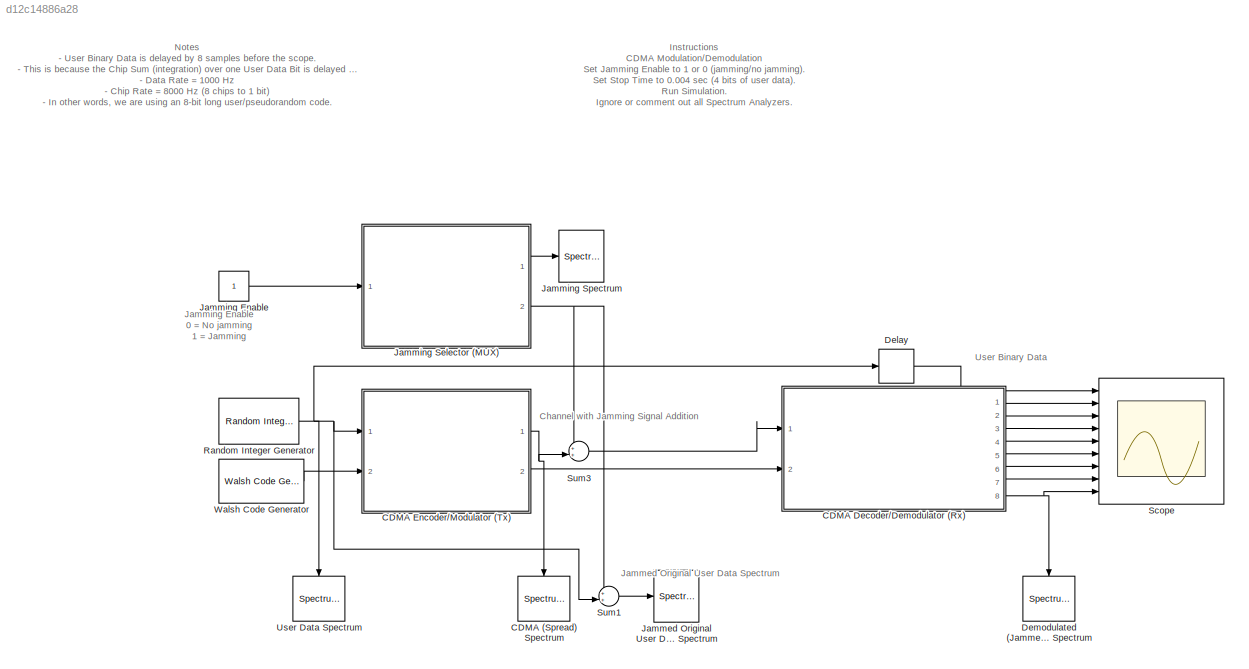
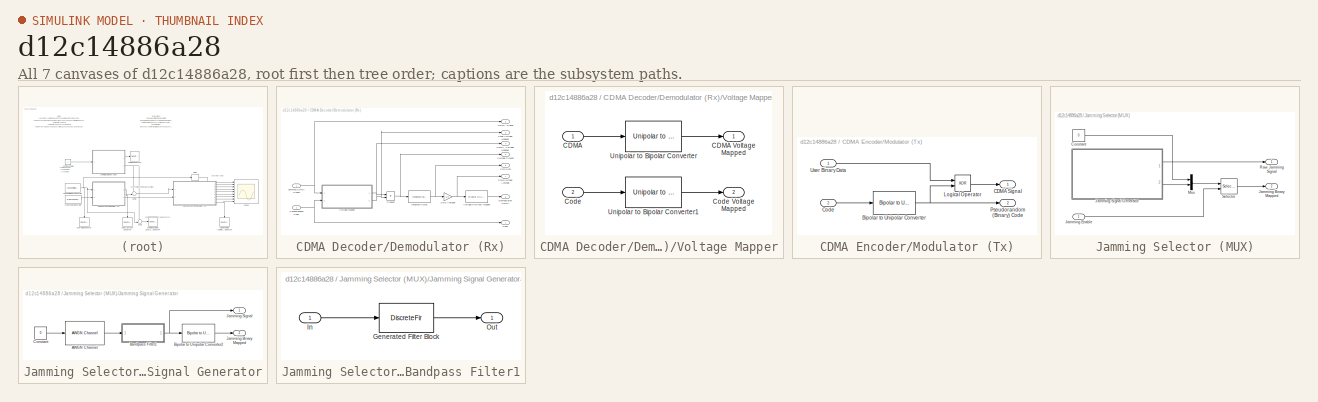
[diagram: thumbnail index - all 7 canvases of the model, root first then tree order]
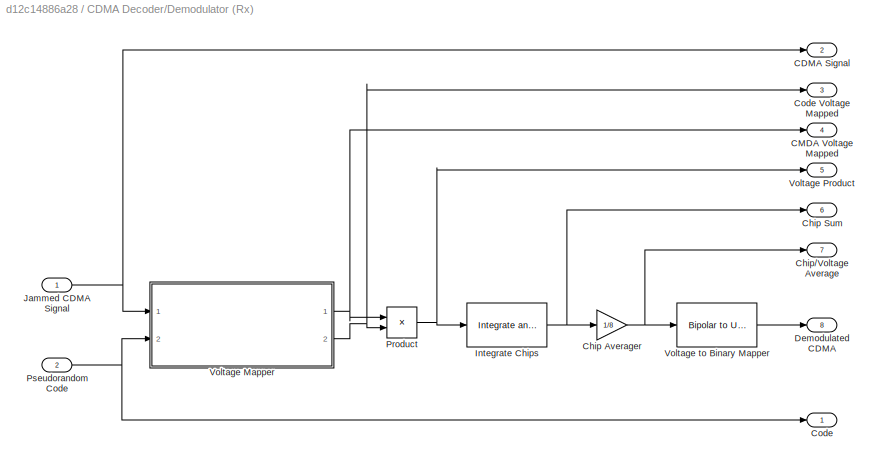
MODEL slx_d12c14886a28
KIND model
CONFIG AbsTol = auto
CONFIG EnableMultiTasking = off
CONFIG FixedStep = auto
CONFIG MaxStep = auto
CONFIG MinStep = auto
CONFIG RelTol = 1e-3
CONFIG SampleTimeConstraint = Unconstrained
CONFIG SolverName = VariableStepAuto
CONFIG StartTime = 0.0
CONFIG StopTime = 0.004
BLOCK [SpectrumAnalyzer] CDMA (Spread) Spectrum
  Commented = on
  NameLocation = left
  Ports = [1]
  ScopeSpecificationString = spbscopes.SpectrumAnalyzerBlockCfg('CurrentConfiguration', extmgr.ConfigurationSet(extmgr.Configuration('Core','General UI',true,'FigureColor',[0.8 0.8 0.8]),extmgr.Configuration('Core','Source UI',true),extmgr.Configuration('Sources','WiredSimulink',true),extmgr.Configuration('Visuals','Spectrum',true,'AxesProperties',struct('Color',{[0.941176470588235 0.941176470588235 0.941176470588235],[0.9411...<+2717ch>
BLOCK [SubSystem] CDMA Decoder//Demodulator (Rx)
  Ports = [2, 8]
  RequestExecContextInheritance = off
BLOCK [Outport] CDMA Decoder//Demodulator (Rx)/CDMA Signal
  Port = 2
BLOCK [Outport] CDMA Decoder//Demodulator (Rx)/CMDA Voltage Mapped
  Port = 4
BLOCK [Gain] CDMA Decoder//Demodulator (Rx)/Chip Averager
  Gain = 1/8
BLOCK [Outport] CDMA Decoder//Demodulator (Rx)/Chip Sum
  Port = 6
BLOCK [Outport] CDMA Decoder//Demodulator (Rx)/Chip//Voltage Average
  Port = 7
BLOCK [Outport] CDMA Decoder//Demodulator (Rx)/Code
BLOCK [Outport] CDMA Decoder//Demodulator (Rx)/Code Voltage Mapped
  Port = 3
BLOCK [Outport] CDMA Decoder//Demodulator (Rx)/Demodulated CDMA
  Port = 8
BLOCK [Reference] CDMA Decoder//Demodulator (Rx)/Integrate Chips  REF=commfilt2/Integrate
and Dump
  Ports = [1, 1]
  SourceBlock = commfilt2/Integrate\nand Dump
  SourceProductBaseCode = CM
  SourceType = Integrate and Dump
BLOCK [Inport] CDMA Decoder//Demodulator (Rx)/Jammed CDMA Signal
BLOCK [Product] CDMA Decoder//Demodulator (Rx)/Product
  Ports = [2, 1]
BLOCK [Inport] CDMA Decoder//Demodulator (Rx)/Pseudorandom Code
  Port = 2
BLOCK [SubSystem] CDMA Decoder//Demodulator (Rx)/Voltage Mapper
  Ports = [2, 2]
  RequestExecContextInheritance = off
BLOCK [Inport] CDMA Decoder//Demodulator (Rx)/Voltage Mapper/CDMA
BLOCK [Outport] CDMA Decoder//Demodulator (Rx)/Voltage Mapper/CDMA Voltage Mapped
BLOCK [Inport] CDMA Decoder//Demodulator (Rx)/Voltage Mapper/Code
  Port = 2
BLOCK [Outport] CDMA Decoder//Demodulator (Rx)/Voltage Mapper/Code Voltage Mapped
  Port = 2
BLOCK [Reference] CDMA Decoder//Demodulator (Rx)/Voltage Mapper/Unipolar to Bipolar Converter  REF=commutil2/Unipolar to
Bipolar
Converter
  Ports = [1, 1]
  SourceBlock = commutil2/Unipolar to\nBipolar\nConverter
  SourceProductBaseCode = CM
  SourceType = Unipolar to Bipolar Converter
BLOCK [Reference] CDMA Decoder//Demodulator (Rx)/Voltage Mapper/Unipolar to Bipolar Converter1  REF=commutil2/Unipolar to
Bipolar
Converter
  Ports = [1, 1]
  SourceBlock = commutil2/Unipolar to\nBipolar\nConverter
  SourceProductBaseCode = CM
  SourceType = Unipolar to Bipolar Converter
BLOCK [Outport] CDMA Decoder//Demodulator (Rx)/Voltage Product
  Port = 5
BLOCK [Reference] CDMA Decoder//Demodulator (Rx)/Voltage to Binary Mapper  REF=commutil2/Bipolar to
Unipolar
Converter
  Ports = [1, 1]
  SourceBlock = commutil2/Bipolar to\nUnipolar\nConverter
  SourceProductBaseCode = CM
  SourceType = Bipolar to Unipolar Converter
BLOCK [SubSystem] CDMA Encoder//Modulator (Tx)
  Ports = [2, 2]
  RequestExecContextInheritance = off
BLOCK [Reference] CDMA Encoder//Modulator (Tx)/Bipolar to Unipolar Converter  REF=commutil2/Bipolar to
Unipolar
Converter
  Ports = [1, 1]
  SourceBlock = commutil2/Bipolar to\nUnipolar\nConverter
  SourceProductBaseCode = CM
  SourceType = Bipolar to Unipolar Converter
BLOCK [Outport] CDMA Encoder//Modulator (Tx)/CDMA Signal
BLOCK [Inport] CDMA Encoder//Modulator (Tx)/Code
  Port = 2
BLOCK [Logic] CDMA Encoder//Modulator (Tx)/Logical Operator
  AllPortsSameDT = off
  Operator = XOR
  OutDataTypeStr = boolean
  Ports = [2, 1]
BLOCK [Outport] CDMA Encoder//Modulator (Tx)/Pseudorandom (Binary) Code
  Port = 2
BLOCK [Inport] CDMA Encoder//Modulator (Tx)/User Binary Data
BLOCK [Delay] Delay
  DelayLength = 8
  InitialCondition = 0
  InputPortMap = u0
  Ports = [1, 1]
  SampleTime = 1/(1000*8)
BLOCK [SpectrumAnalyzer] Demodulated (Jammed) CDMA Spectrum
  Commented = on
  NameLocation = right
  Ports = [1]
  ScopeSpecificationString = spbscopes.SpectrumAnalyzerBlockCfg('CurrentConfiguration', extmgr.ConfigurationSet(extmgr.Configuration('Core','General UI',true,'FigureColor',[0.8 0.8 0.8]),extmgr.Configuration('Core','Source UI',true),extmgr.Configuration('Sources','WiredSimulink',true),extmgr.Configuration('Visuals','Spectrum',true,'AxesProperties',struct('Color',{[0.941176470588235 0.941176470588235 0.941176470588235],[0.9411...<+2612ch>
BLOCK [SpectrumAnalyzer] Jammed Original User Data Spectrum
  Commented = on
  Ports = [1]
  ScopeSpecificationString = spbscopes.SpectrumAnalyzerBlockCfg('CurrentConfiguration', extmgr.ConfigurationSet(extmgr.Configuration('Core','General UI',true,'FigureColor',[0.8 0.8 0.8]),extmgr.Configuration('Core','Source UI',true),extmgr.Configuration('Sources','WiredSimulink',true),extmgr.Configuration('Visuals','Spectrum',true,'AxesProperties',struct('Color',{[0.941176470588235 0.941176470588235 0.941176470588235],[0.9411...<+2709ch>
BLOCK [Constant] Jamming Enable
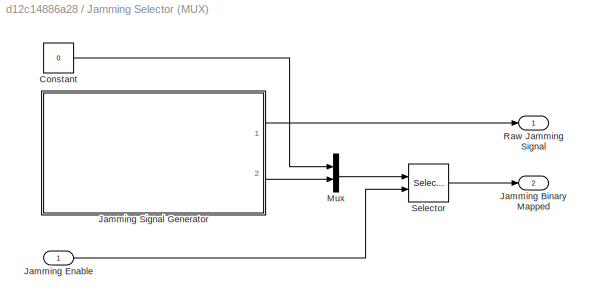
BLOCK [SubSystem] Jamming Selector (MUX)
  Ports = [1, 2]
  RequestExecContextInheritance = off
BLOCK [Constant] Jamming Selector (MUX)/Constant
  SampleTime = 1/1000
  Value = 0
BLOCK [Outport] Jamming Selector (MUX)/Jamming Binary Mapped
  Port = 2
BLOCK [Inport] Jamming Selector (MUX)/Jamming Enable
BLOCK [SubSystem] Jamming Selector (MUX)/Jamming Signal Generator
  Ports = [0, 2]
  RequestExecContextInheritance = off
BLOCK [Reference] Jamming Selector (MUX)/Jamming Signal Generator/AWGN Channel  REF=commchan3/AWGN
Channel
  Ports = [1, 1]
  SourceBlock = commchan3/AWGN\nChannel
  SourceProductBaseCode = CM
  SourceType = AWGN Channel
  UserDataPersistent = on
BLOCK [SubSystem] Jamming Selector (MUX)/Jamming Signal Generator/Bandpass Filter1
  CopyFcn = fdesignblkfcn(gcbh, {'CopyFcn'});
  DialogController = fdesignblkfcn
  InitFcn = fdesignblkfcn(gcbh, {'InitFcn'});
  Ports = [1, 1]
  RequestExecContextInheritance = off
  UserDataPersistent = on
BLOCK [DiscreteFir] Jamming Selector (MUX)/Jamming Signal Generator/Bandpass Filter1/Generated Filter Block
  Coefficients = [-0.0008992291487744296 0.0016414518747943749 0.0031352071842225397 -0.0040707550828814922 -0.0063731852227904111 0.0074874286806090491 0.0098354319566295711 -0.010189316513446216 -0.011302794465874122 0.0096929185841818435 0.0079428653987464216 -0.0031368247881221642 0.0028299878877943137 -0.011508674243001471 -0.022080136219461581 0.034245325424507672 0.048356661648905473 -0.062355369169884239 -...<+647ch>
  InputPortMap = u0
  InputProcessing = Columns as channels (frame based)
  OutputPortMap = o0
  Ports = [1, 1]
  Tag = BlockMethodSubSystem
BLOCK [Inport] Jamming Selector (MUX)/Jamming Signal Generator/Bandpass Filter1/In
BLOCK [Outport] Jamming Selector (MUX)/Jamming Signal Generator/Bandpass Filter1/Out
  VectorParamsAs1DForOutWhenUnconnected = off
BLOCK [Reference] Jamming Selector (MUX)/Jamming Signal Generator/Bipolar to Unipolar Converter2  REF=commutil2/Bipolar to
Unipolar
Converter
  Ports = [1, 1]
  SourceBlock = commutil2/Bipolar to\nUnipolar\nConverter
  SourceProductBaseCode = CM
  SourceType = Bipolar to Unipolar Converter
BLOCK [Constant] Jamming Selector (MUX)/Jamming Signal Generator/Constant
  SampleTime = 1/1000
  Value = 0
BLOCK [Outport] Jamming Selector (MUX)/Jamming Signal Generator/Jamming Binary Mapped
  Port = 2
BLOCK [Outport] Jamming Selector (MUX)/Jamming Signal Generator/Jamming Signal
BLOCK [Mux] Jamming Selector (MUX)/Mux
  DisplayOption = bar
  Inputs = 2
  Ports = [2, 1]
BLOCK [Outport] Jamming Selector (MUX)/Raw Jamming Signal
BLOCK [Selector] Jamming Selector (MUX)/Selector
  IndexMode = Zero-based
  IndexOptions = Index vector (port)
  Indices = 0
  InputPortWidth = 2
  OutputSizes = 1
  Ports = [2, 1]
BLOCK [SpectrumAnalyzer] Jamming Spectrum
  Commented = on
  NameLocation = top
  Ports = [1]
  ScopeSpecificationString = spbscopes.SpectrumAnalyzerBlockCfg('CurrentConfiguration', extmgr.ConfigurationSet(extmgr.Configuration('Core','General UI',true,'FigureColor',[0.8 0.8 0.8]),extmgr.Configuration('Core','Source UI',true),extmgr.Configuration('Sources','WiredSimulink',true),extmgr.Configuration('Sources','SPTool',false),extmgr.Configuration('Sources','File',false),extmgr.Configuration('Sources','Workspace',false),e...<+2690ch>
BLOCK [Reference] Random Integer Generator  REF=commrandsrc3/Random Integer
Generator
  Ports = [0, 1]
  SourceBlock = commrandsrc3/Random Integer\nGenerator
  SourceProductBaseCode = CM
  SourceType = Random Integer Generator
BLOCK [Scope] Scope
  Floating = off
  NumInputPorts = 9
  Ports = [9]
  ScopeSpecificationString = Simulink.scopes.TimeScopeBlockCfg('CurrentConfiguration', extmgr.ConfigurationSet(extmgr.Configuration('Core','General UI',true,'FigureColor',[0.941176470588235 0.941176470588235 0.941176470588235]),extmgr.Configuration('Core','Source UI',true),extmgr.Configuration('Sources','WiredSimulink',true),extmgr.Configuration('Visuals','Time Domain',true,'TimeAxisLabels','All','SerializedDisplays',{struct(...<+3118ch>
BLOCK [Sum] Sum1
  Inputs = ++|
  Ports = [2, 1]
BLOCK [Sum] Sum3
  Inputs = ++|
  Ports = [2, 1]
BLOCK [SpectrumAnalyzer] User Data Spectrum
  Commented = on
  NameLocation = left
  Ports = [1]
  ScopeSpecificationString = spbscopes.SpectrumAnalyzerBlockCfg('CurrentConfiguration', extmgr.ConfigurationSet(extmgr.Configuration('Core','General UI',true,'FigureColor',[0.8 0.8 0.8]),extmgr.Configuration('Core','Source UI',true),extmgr.Configuration('Sources','WiredSimulink',true),extmgr.Configuration('Sources','SPTool',false),extmgr.Configuration('Sources','File',false),extmgr.Configuration('Sources','Workspace',false),e...<+2562ch>
BLOCK [Reference] Walsh Code Generator  REF=commseqgen3/Walsh Code
Generator
  Ports = [0, 1]
  SourceBlock = commseqgen3/Walsh Code\nGenerator
  SourceProductBaseCode = CM
  SourceType = Walsh Code Generator
ANNOTATION (root): Jammed Original User Data Spectrum
ANNOTATION (root): Channel with Jamming Signal Addition
ANNOTATION (root): Jamming Enable 0 = No jamming 1 = Jamming
ANNOTATION (root): Notes - User Binary Data is delayed by 8 samples before the scope. - This is because the Chip Sum (integration) over one User Data Bit is delayed by 8 samples with respect to the range of integration (User Data Bit). - Data Rate = 1000 Hz - Chip Rate = 8000 Hz (8 chips to 1 bit) - In other words, we are using an 8-bit long user/pseudorandom code. - Random Integer is set to output binary. - Walsh C...<+161ch>
ANNOTATION (root): Instructions CDMA Modulation/Demodulation Set Jamming Enable to 1 or 0 (jamming/no jamming). Set Stop Time to 0.004 sec (4 bits of user data). Run Simulation. Ignore or comment out all Spectrum Analyzers. Click on scope. Verify Demodulated CDMA matches original User Binary Data. Can also check to see intermediate steps. Spectrum Analyzer Set Jamming Enable to 1 (presence of jamming). Set Stop Time...<+276ch>
ANNOTATION (root): User Binary Data
NET CDMA Decoder//Demodulator (Rx)/Chip Averager:1 -> CDMA Decoder//Demodulator (Rx)/Chip//Voltage Average:1, CDMA Decoder//Demodulator (Rx)/Voltage to Binary Mapper:1
NET CDMA Decoder//Demodulator (Rx)/Integrate Chips:1 -> CDMA Decoder//Demodulator (Rx)/Chip Averager:1, CDMA Decoder//Demodulator (Rx)/Chip Sum:1
NET CDMA Decoder//Demodulator (Rx)/Jammed CDMA Signal:1 -> CDMA Decoder//Demodulator (Rx)/CDMA Signal:1, CDMA Decoder//Demodulator (Rx)/Voltage Mapper:1
NET CDMA Decoder//Demodulator (Rx)/Product:1 -> CDMA Decoder//Demodulator (Rx)/Integrate Chips:1, CDMA Decoder//Demodulator (Rx)/Voltage Product:1
NET CDMA Decoder//Demodulator (Rx)/Pseudorandom Code:1 -> CDMA Decoder//Demodulator (Rx)/Code:1, CDMA Decoder//Demodulator (Rx)/Voltage Mapper:2
LINE CDMA Decoder//Demodulator (Rx)/Voltage Mapper/CDMA:1 -> CDMA Decoder//Demodulator (Rx)/Voltage Mapper/Unipolar to Bipolar Converter:1
LINE CDMA Decoder//Demodulator (Rx)/Voltage Mapper/Code:1 -> CDMA Decoder//Demodulator (Rx)/Voltage Mapper/Unipolar to Bipolar Converter1:1
LINE CDMA Decoder//Demodulator (Rx)/Voltage Mapper/Unipolar to Bipolar Converter1:1 -> CDMA Decoder//Demodulator (Rx)/Voltage Mapper/Code Voltage Mapped:1
LINE CDMA Decoder//Demodulator (Rx)/Voltage Mapper/Unipolar to Bipolar Converter:1 -> CDMA Decoder//Demodulator (Rx)/Voltage Mapper/CDMA Voltage Mapped:1
NET CDMA Decoder//Demodulator (Rx)/Voltage Mapper:1 -> CDMA Decoder//Demodulator (Rx)/CMDA Voltage Mapped:1, CDMA Decoder//Demodulator (Rx)/Product:1
NET CDMA Decoder//Demodulator (Rx)/Voltage Mapper:2 -> CDMA Decoder//Demodulator (Rx)/Code Voltage Mapped:1, CDMA Decoder//Demodulator (Rx)/Product:2
LINE CDMA Decoder//Demodulator (Rx)/Voltage to Binary Mapper:1 -> CDMA Decoder//Demodulator (Rx)/Demodulated CDMA:1
LINE CDMA Decoder//Demodulator (Rx):1 -> Scope:2
LINE CDMA Decoder//Demodulator (Rx):2 -> Scope:3
LINE CDMA Decoder//Demodulator (Rx):3 -> Scope:4
LINE CDMA Decoder//Demodulator (Rx):4 -> Scope:5
LINE CDMA Decoder//Demodulator (Rx):5 -> Scope:6
LINE CDMA Decoder//Demodulator (Rx):6 -> Scope:7
LINE CDMA Decoder//Demodulator (Rx):7 -> Scope:8
NET CDMA Decoder//Demodulator (Rx):8 -> Demodulated (Jammed) CDMA Spectrum:1, Scope:9
NET CDMA Encoder//Modulator (Tx)/Bipolar to Unipolar Converter:1 -> CDMA Encoder//Modulator (Tx)/Logical Operator:2, CDMA Encoder//Modulator (Tx)/Pseudorandom (Binary) Code:1
LINE CDMA Encoder//Modulator (Tx)/Code:1 -> CDMA Encoder//Modulator (Tx)/Bipolar to Unipolar Converter:1
LINE CDMA Encoder//Modulator (Tx)/Logical Operator:1 -> CDMA Encoder//Modulator (Tx)/CDMA Signal:1
LINE CDMA Encoder//Modulator (Tx)/User Binary Data:1 -> CDMA Encoder//Modulator (Tx)/Logical Operator:1
NET CDMA Encoder//Modulator (Tx):1 -> CDMA (Spread) Spectrum:1, Sum3:2
LINE CDMA Encoder//Modulator (Tx):2 -> CDMA Decoder//Demodulator (Rx):2
LINE Delay:1 -> Scope:1
LINE Jamming Enable:1 -> Jamming Selector (MUX):1
LINE Jamming Selector (MUX)/Constant:1 -> Jamming Selector (MUX)/Mux:1
LINE Jamming Selector (MUX)/Jamming Enable:1 -> Jamming Selector (MUX)/Selector:2
LINE Jamming Selector (MUX)/Jamming Signal Generator/AWGN Channel:1 -> Jamming Selector (MUX)/Jamming Signal Generator/Bandpass Filter1:1
NET Jamming Selector (MUX)/Jamming Signal Generator/Bandpass Filter1:1 -> Jamming Selector (MUX)/Jamming Signal Generator/Bipolar to Unipolar Converter2:1, Jamming Selector (MUX)/Jamming Signal Generator/Jamming Signal:1
LINE Jamming Selector (MUX)/Jamming Signal Generator/Bipolar to Unipolar Converter2:1 -> Jamming Selector (MUX)/Jamming Signal Generator/Jamming Binary Mapped:1
LINE Jamming Selector (MUX)/Jamming Signal Generator/Constant:1 -> Jamming Selector (MUX)/Jamming Signal Generator/AWGN Channel:1
LINE Jamming Selector (MUX)/Jamming Signal Generator:1 -> Jamming Selector (MUX)/Raw Jamming Signal:1
LINE Jamming Selector (MUX)/Jamming Signal Generator:2 -> Jamming Selector (MUX)/Mux:2
LINE Jamming Selector (MUX)/Mux:1 -> Jamming Selector (MUX)/Selector:1
LINE Jamming Selector (MUX)/Selector:1 -> Jamming Selector (MUX)/Jamming Binary Mapped:1
LINE Jamming Selector (MUX):1 -> Jamming Spectrum:1
NET Jamming Selector (MUX):2 -> Sum1:1, Sum3:1
NET Random Integer Generator:1 -> CDMA Encoder//Modulator (Tx):1, Delay:1, Sum1:2, User Data Spectrum:1
LINE Sum1:1 -> Jammed Original User Data Spectrum:1
LINE Sum3:1 -> CDMA Decoder//Demodulator (Rx):1
LINE Walsh Code Generator:1 -> CDMA Encoder//Modulator (Tx):2
note: NET lines group one-source signal fan-out (src -> all destinations, sorted); 1:1 wires keep LINE
